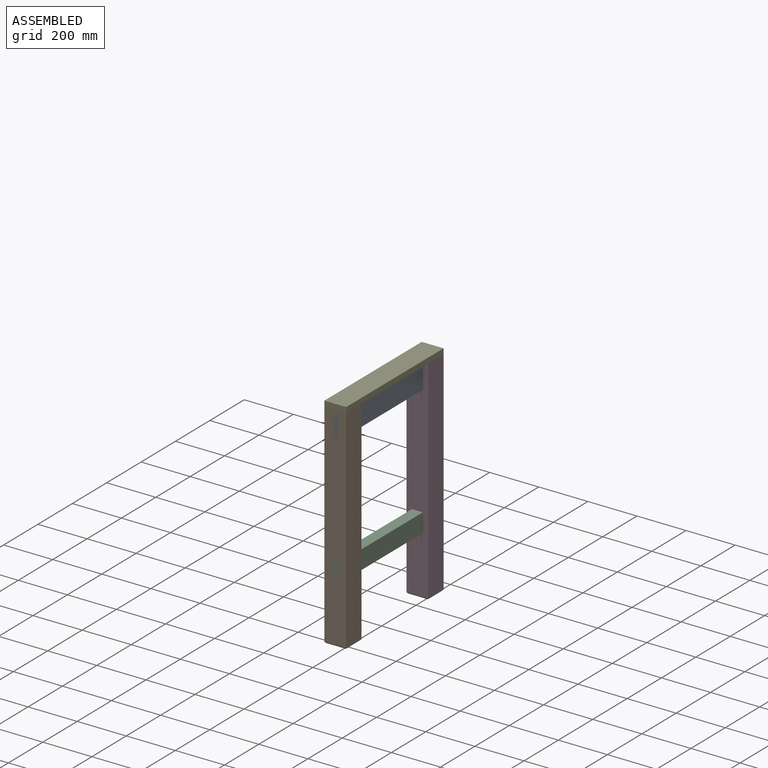
[diagram: assembled view]
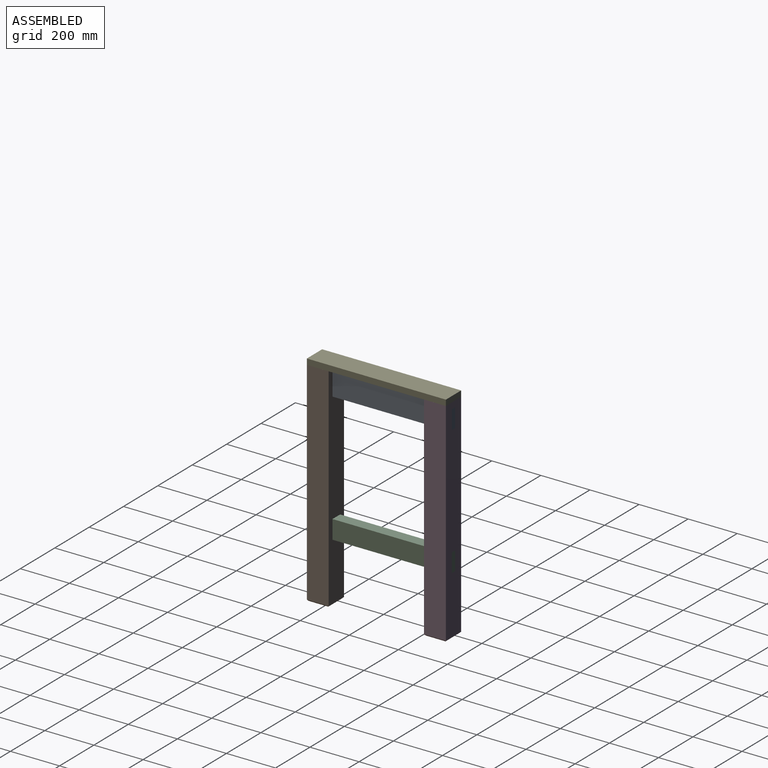
[diagram: assembled view, second angle]
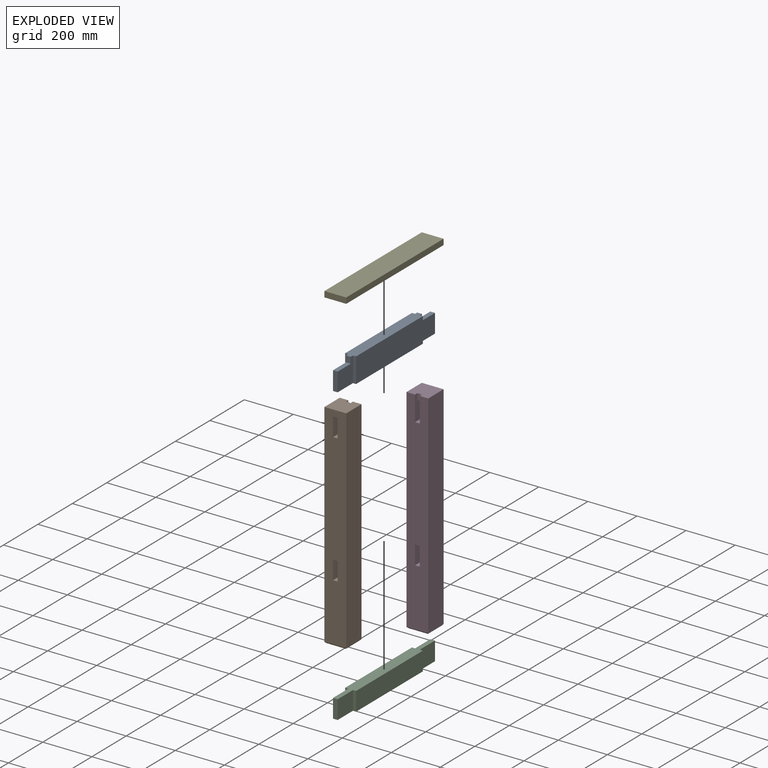
[diagram: exploded view]
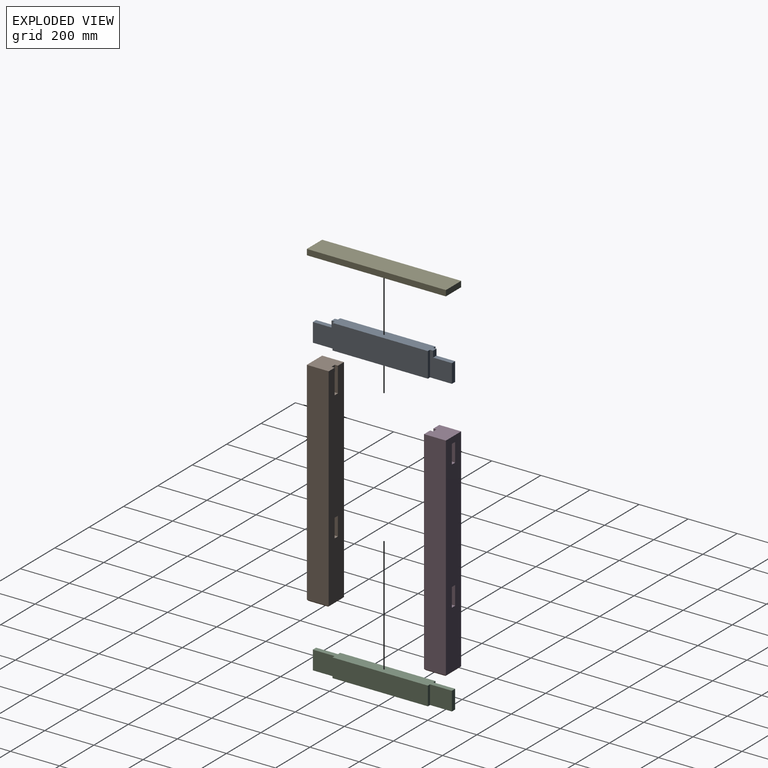
[diagram: exploded view, second angle]
ASSEMBLY  parts=5 mates=4
PART A: 18 faces, bbox 566.4x44.5x101.6 mm
  f0: plane 101.6x88.9mm, normal (0,-1,0), area 7096.8mm2, adj f1,f6,f12,f13,f14,f15
  f1: plane 76.2x19.05mm, normal (1,0,0), area 1451.6mm2, adj f0,f2,f13,f15
  f2: plane 101.6x88.9mm, normal (0,1,0), area 7096.8mm2, adj f1,f6,f7,f13,f14,f15
  f3: plane 101.6x88.9mm, normal (0,1,0), area 7096.8mm2, adj f4,f6,f9,f13,f16,f17
  f4: plane 76.2x19.05mm, normal (-1,0,0), area 1451.6mm2, adj f3,f5,f13,f17
  f5: plane 101.6x88.9mm, normal (0,-1,0), area 7096.8mm2, adj f4,f6,f10,f13,f16,f17
  f6: plane 414.02x44.45mm, normal (0,0,1), area 17758mm2, adj f0,f2,f3,f5,f7,f8,f9,f10
  f7: plane 101.6x12.7mm, normal (1,0,0), area 1290.3mm2, adj f2,f6,f8,f13
  f8: plane 388.62x101.6mm, normal (0,1,0), area 39483.8mm2, adj f6,f7,f9,f13
  f9: plane 101.6x12.7mm, normal (-1,0,0), area 1290.3mm2, adj f3,f6,f8,f13
  f10: plane 101.6x12.7mm, normal (-1,0,0), area 1290.3mm2, adj f5,f6,f11,f13
  f11: plane 388.62x101.6mm, normal (0,-1,0), area 39483.8mm2, adj f6,f10,f12,f13
  f12: plane 101.6x12.7mm, normal (1,0,0), area 1290.3mm2, adj f0,f6,f11,f13
  f13: plane 566.42x44.45mm, normal (0,0,-1), area 20661.2mm2, adj f0,f1,f2,f3,f4,f5,f7,f8
  f14: plane 25.4x19.05mm, normal (1,0,0), area 483.9mm2, adj f0,f2,f6,f15
  f15: plane 76.2x19.05mm, normal (0,0,1), area 1451.6mm2, adj f0,f1,f2,f14
  f16: plane 25.4x19.05mm, normal (-1,0,0), area 483.9mm2, adj f3,f5,f6,f17
  f17: plane 76.2x19.05mm, normal (0,0,1), area 1451.6mm2, adj f3,f4,f5,f16
PART B: 19 faces, bbox 88.9x88.9x870 mm
  f0: plane 88.9x88.9mm, normal (0,0,1), area 7661.3mm2, adj f1,f2,f3,f4,f11,f13,f14
  f1: plane 864.87x88.9mm, normal (0,1,0), area 73983.7mm2, adj f0,f3,f4,f6,f7,f8,f9,f10
  f2: plane 864.87x88.9mm, normal (0,-1,0), area 73499.9mm2, adj f0,f3,f4,f6,f7,f8,f9,f11
  f3: plane 864.87x88.9mm, normal (-1,0,0), area 76886.9mm2, adj f0,f1,f2,f15
  f4: plane 864.87x88.9mm, normal (1,0,0), area 76886.9mm2, adj f0,f1,f2,f18
  f5: plane 78.74x78.74mm, normal (0,0,-1), area 6200mm2, adj f15,f16,f17,f18
  f6: plane 88.9x76.2mm, normal (1,0,0), area 6774.2mm2, adj f1,f2,f7,f9
  f7: plane 88.9x19.05mm, normal (0,0,1), area 1693.5mm2, adj f1,f2,f6,f8
  f8: plane 88.9x76.2mm, normal (-1,0,0), area 6774.2mm2, adj f1,f2,f7,f9
  f9: plane 88.9x19.05mm, normal (0,0,-1), area 1693.5mm2, adj f1,f2,f6,f8
  f10: plane 76.2x19.05mm, normal (0,0,-1), area 1451.6mm2, adj f1,f11,f13,f14
  f11: plane 101.6x88.9mm, normal (1,0,0), area 7096.8mm2, adj f0,f1,f2,f10,f12,f14
  f12: plane 88.9x19.05mm, normal (0,0,1), area 1693.5mm2, adj f1,f2,f11,f13
  f13: plane 101.6x88.9mm, normal (-1,0,0), area 7096.8mm2, adj f0,f1,f2,f10,f12,f14
  f14: plane 25.4x19.05mm, normal (0,-1,0), area 483.9mm2, adj f0,f10,f11,f13
  f15: plane 88.9x5.08mm, normal (-0.71,0,-0.71), area 602.2mm2, adj f3,f5,f16,f17
  f16: plane 88.9x5.08mm, normal (0,0.71,-0.71), area 602.2mm2, adj f1,f5,f15,f18
  f17: plane 88.9x5.08mm, normal (0,-0.71,-0.71), area 602.2mm2, adj f2,f5,f15,f18
  f18: plane 88.9x5.08mm, normal (0.71,0,-0.71), area 602.2mm2, adj f4,f5,f16,f17
PART C: 14 faces, bbox 566.4x44.5x76.2 mm
  f0: plane 88.9x76.2mm, normal (0,-1,0), area 6774.2mm2, adj f10,f11,f12,f13
  f1: plane 88.9x76.2mm, normal (0,1,0), area 6774.2mm2, adj f2,f11,f12,f13
  f2: plane 76.2x12.7mm, normal (1,0,0), area 967.7mm2, adj f1,f3,f12,f13
  f3: plane 388.62x76.2mm, normal (0,1,0), area 29612.8mm2, adj f2,f4,f12,f13
  f4: plane 76.2x12.7mm, normal (-1,0,0), area 967.7mm2, adj f3,f5,f12,f13
  f5: plane 88.9x76.2mm, normal (0,1,0), area 6774.2mm2, adj f4,f6,f12,f13
  f6: plane 76.2x19.05mm, normal (-1,0,0), area 1451.6mm2, adj f5,f7,f12,f13
  f7: plane 88.9x76.2mm, normal (0,-1,0), area 6774.2mm2, adj f6,f8,f12,f13
  f8: plane 76.2x12.7mm, normal (-1,0,0), area 967.7mm2, adj f7,f9,f12,f13
  f9: plane 388.62x76.2mm, normal (0,-1,0), area 29612.8mm2, adj f8,f10,f12,f13
  f10: plane 76.2x12.7mm, normal (1,0,0), area 967.7mm2, adj f0,f9,f12,f13
  f11: plane 76.2x19.05mm, normal (1,0,0), area 1451.6mm2, adj f0,f1,f12,f13
  f12: plane 566.42x44.45mm, normal (0,0,1), area 20661.2mm2, adj f0,f1,f2,f3,f4,f5,f6,f7
  f13: plane 566.42x44.45mm, normal (0,0,-1), area 20661.2mm2, adj f0,f1,f2,f3,f4,f5,f6,f7
PART D: same geometry as B
PART E: 6 faces, bbox 566.4x88.9x23.4 mm
  f0: plane 566.42x23.37mm, normal (0,1,0), area 13236.1mm2, adj f1,f3,f4,f5
  f1: plane 88.9x23.37mm, normal (-1,0,0), area 2077.4mm2, adj f0,f2,f4,f5
  f2: plane 566.42x23.37mm, normal (0,-1,0), area 13236.1mm2, adj f1,f3,f4,f5
  f3: plane 88.9x23.37mm, normal (1,0,0), area 2077.4mm2, adj f0,f2,f4,f5
  f4: plane 566.42x88.9mm, normal (0,0,1), area 50354.7mm2, adj f0,f1,f2,f3
  f5: plane 566.42x88.9mm, normal (0,0,-1), area 50354.7mm2, adj f0,f1,f2,f3
PLACE A rot(axis=(0,0,-1),90deg) t=(1230.65,710.29,885.81)mm
PLACE B rot(axis=(0,0,1),180deg) t=(104.26,-130.53,733.41)mm
PLACE C rot(axis=(0,0,-1),90deg) t=(1230.65,710.29,79.36)mm
PLACE D t=(127.64,456.28,733.41)mm
PLACE E rot(axis=(0,0,-1),90deg) t=(563.41,-341.84,733.41)mm
MATE fastened C.f13 <-> D.f7  axis (0,0,1) through (106.42,446.08,104.76)mm
MATE fastened E.f5 <-> D.f0  axis (0,0,-1) through (160.4,446.08,733.41)mm
MATE fastened D.f12 <-> A.f13  axis (0,0,1) through (106.42,446.08,631.81)mm
MATE fastened B.f7 <-> C.f13  axis (0,0,1) through (106.42,-120.34,104.76)mm
